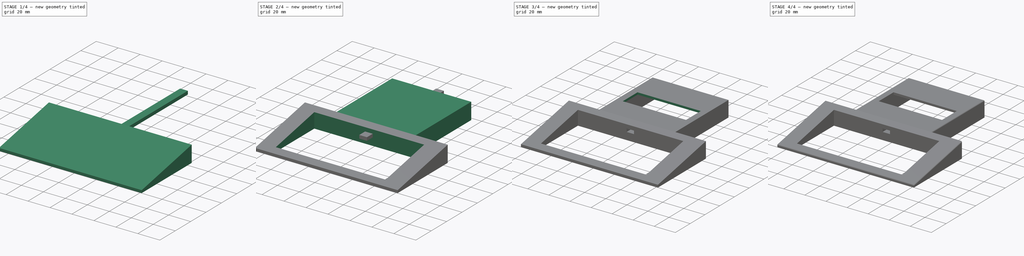
[diagram: build sequence overview — one tinted view per stage of 4, left to right]
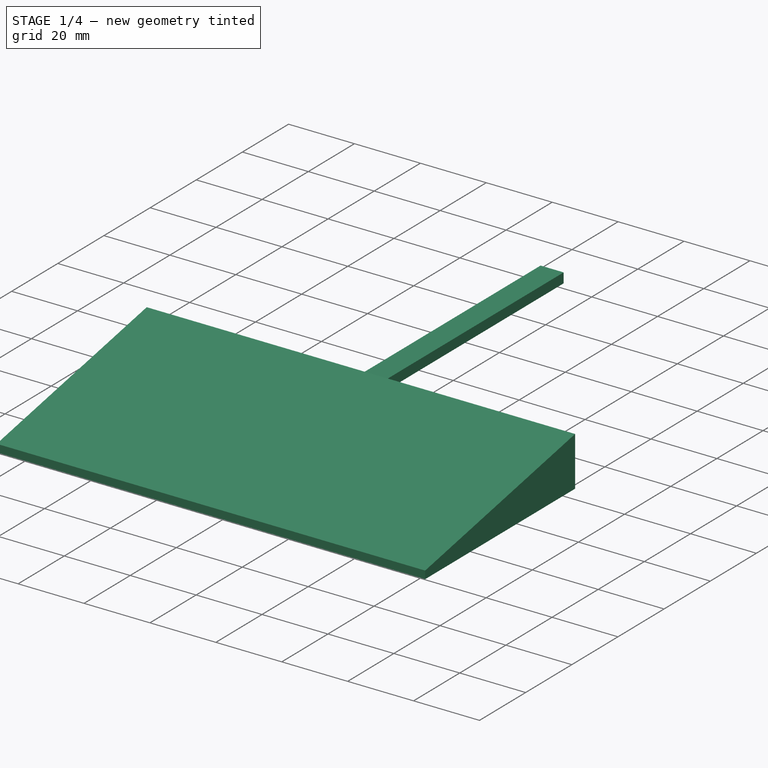
[diagram: stage 1 of 4 — iso view after this stage's code; geometry added in this stage tinted green]
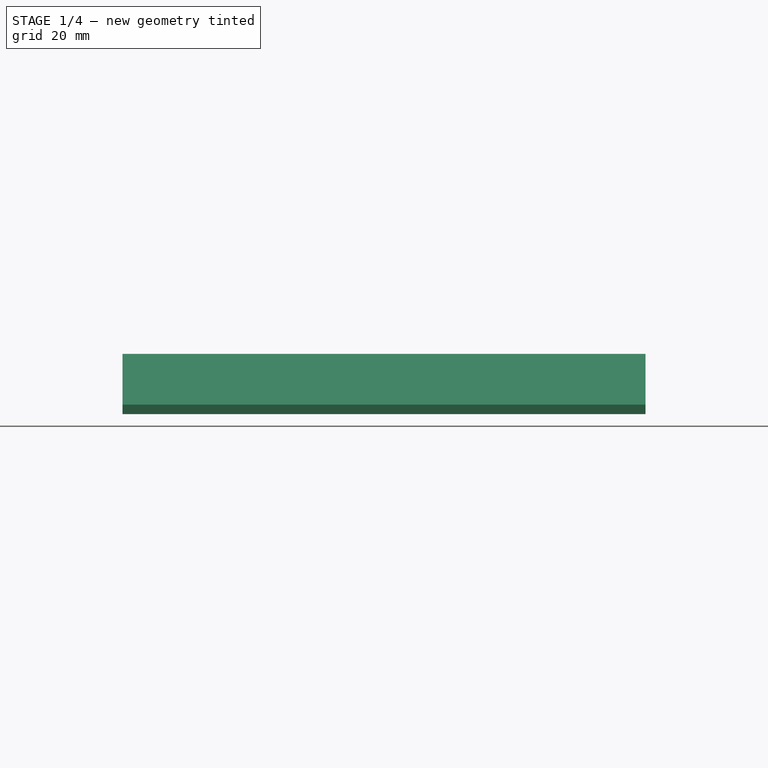
[diagram: stage 1 of 4 — front view after this stage's code; geometry added in this stage tinted green]
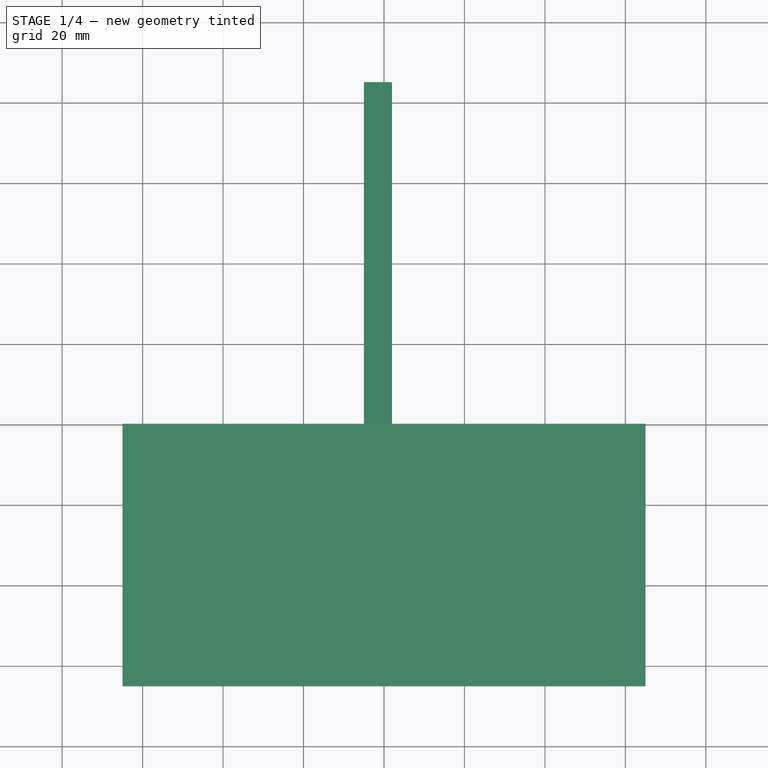
[diagram: stage 1 of 4 — top view after this stage's code; geometry added in this stage tinted green]
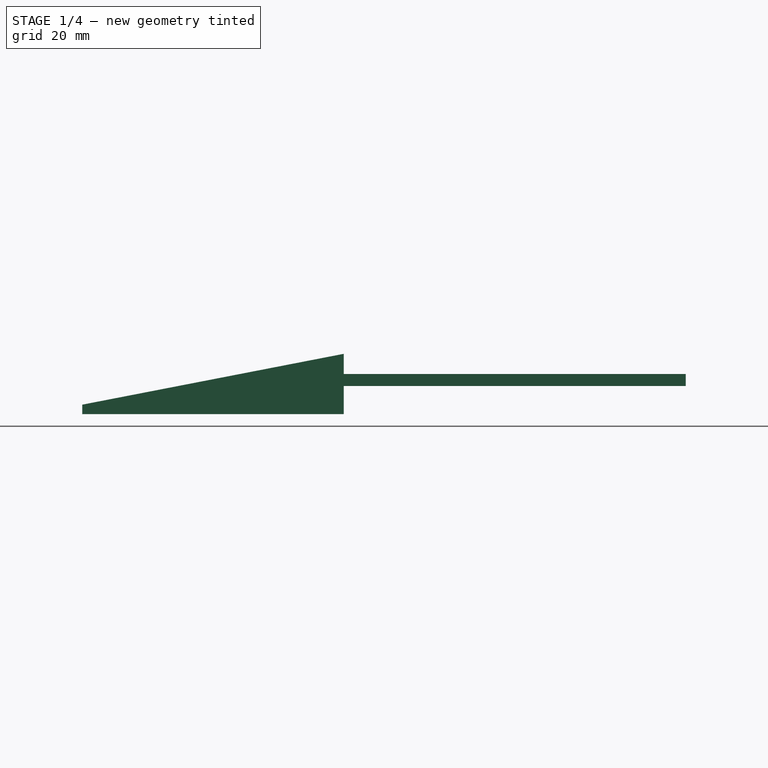
[diagram: stage 1 of 4 — right view after this stage's code; geometry added in this stage tinted green]
FCSTD DOCUMENT  (FreeCAD 0.17R13522 (Git))
Label: winkmaudi
License: All rights reserved
LicenseURL: http://en.wikipedia.org/wiki/All_rights_reserved
objects: Sketcher::SketchObject×6, PartDesign::Pocket×4, Part::Fillet×3, PartDesign::Pad×2, PartDesign::Draft×1, PartDesign::Body×1, Part::Box×1, Part::Cut×1
note: 25 computed .brp shape members not serialized (recipe doc carries the construction recipe); baked Part::Feature solids carry a one-line shape summary decoded from their .brp

FEATURE [Sketcher::SketchObject] Sketch
  MapMode = 5
  Support = -> [XY_Plane]
  sketch-geometry (4):
    g0: LineSegment StartX=-65 StartY=0 StartZ=0 EndX=65 EndY=0 EndZ=0
    g1: LineSegment StartX=65 StartY=0 StartZ=0 EndX=65 EndY=-65 EndZ=0
    g2: LineSegment StartX=65 StartY=-65 StartZ=0 EndX=-65 EndY=-65 EndZ=0
    g3: LineSegment StartX=-65 StartY=-65 StartZ=0 EndX=-65 EndY=0 EndZ=0
  constraints (12):
    c: Coincident(g0,g1)
    c: Coincident(g1,g2)
    c: Coincident(g2,g3)
    c: Coincident(g3,g0)
    c: Horizontal(g0)
    c: Horizontal(g2)
    c: Vertical(g1)
    c: Vertical(g3)
    c: PointOnObject(g0,g-1)
    c: DistanceX(g0,g0) = 130
    c: DistanceY(g3,g3) = 65
    c: Symmetric(g0,g0,g-2)
FEATURE [PartDesign::Pad] Pad
  Length = 15
  Length2 = 100
  Profile = -> Sketch
  Type = 0
FEATURE [PartDesign::Draft] Draft
  Angle = 11
  Base = -> Pad [Face6]
  BaseFeature = -> Pad
  NeutralPlane = -> Pad [Face1]
  Reversed = true
FEATURE [PartDesign::Body] Body
  Group = -> [Sketch,Pad,Draft,Sketch001,Pocket,Sketch002,Pad001,Sketch003,Pocket001,Sketch004,Pocket002,Sketch005,Pocket003]
  Origin = -> Origin
  Tip = -> Pocket003
FEATURE [Part::Box] Box  label="Würfel"
  AttacherType = Attacher::AttachEngine3D
  Height = 3
  Length = 7
  Placement = pos=(-5,-15,7) rot=(0,0,1;0rad)
  Width = 100
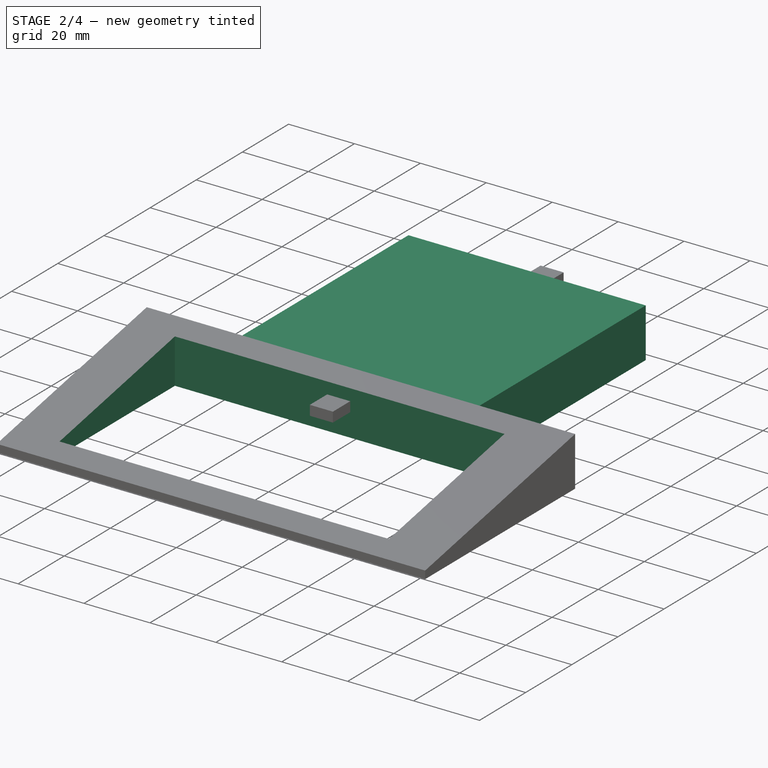
[diagram: stage 2 of 4 — iso view after this stage's code; geometry added in this stage tinted green]
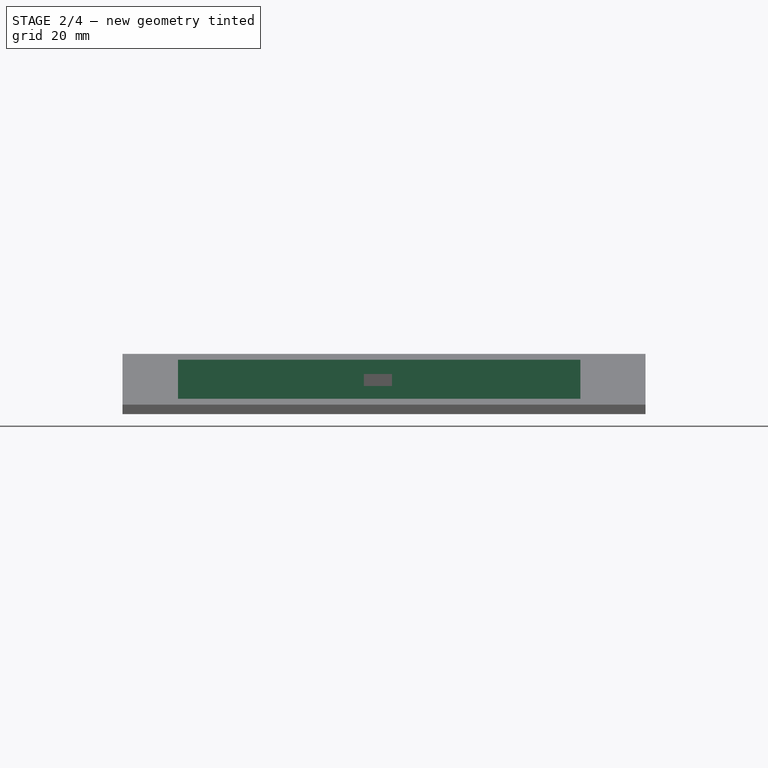
[diagram: stage 2 of 4 — front view after this stage's code; geometry added in this stage tinted green]
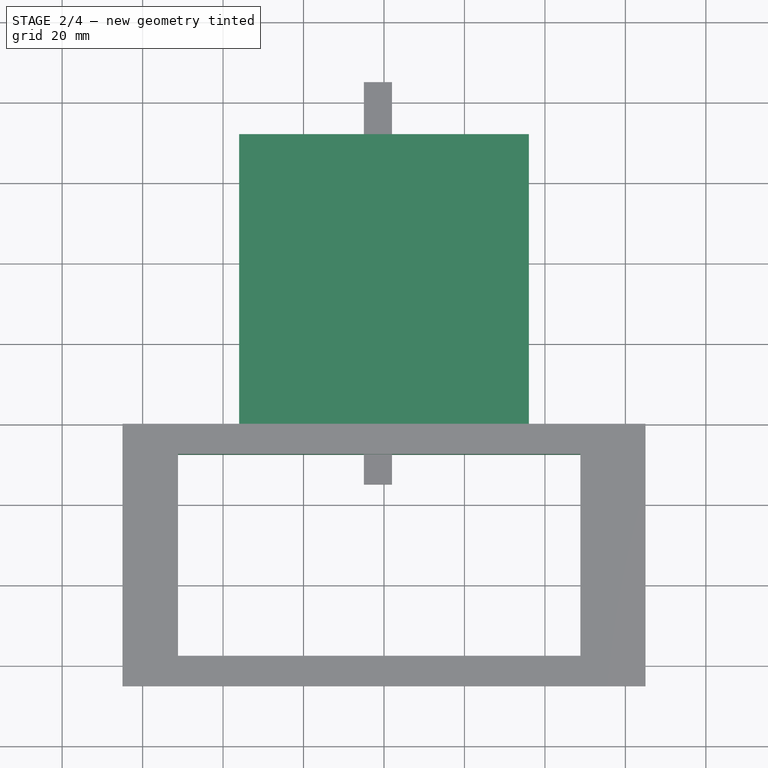
[diagram: stage 2 of 4 — top view after this stage's code; geometry added in this stage tinted green]
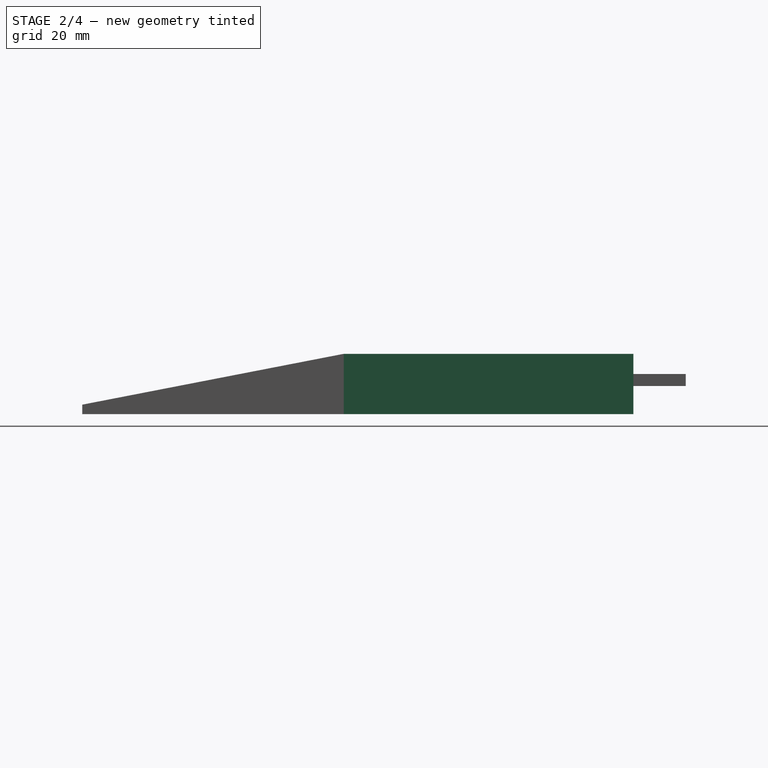
[diagram: stage 2 of 4 — right view after this stage's code; geometry added in this stage tinted green]
FEATURE [Sketcher::SketchObject] Sketch001
  MapMode = 5
  Support = -> [XY_Plane]
  sketch-geometry (4):
    g0: LineSegment StartX=-51.1952 StartY=-7.5 StartZ=0 EndX=48.8048 EndY=-7.5 EndZ=0
    g1: LineSegment StartX=48.8048 StartY=-7.5 StartZ=0 EndX=48.8048 EndY=-57.5 EndZ=0
    g2: LineSegment StartX=48.8048 StartY=-57.5 StartZ=0 EndX=-51.1952 EndY=-57.5 EndZ=0
    g3: LineSegment StartX=-51.1952 StartY=-57.5 StartZ=0 EndX=-51.1952 EndY=-7.5 EndZ=0
  constraints (11):
    c: Coincident(g0,g1)
    c: Coincident(g1,g2)
    c: Coincident(g2,g3)
    c: Coincident(g3,g0)
    c: Horizontal(g0)
    c: Horizontal(g2)
    c: Vertical(g1)
    c: Vertical(g3)
    c: DistanceX(g0,g0) = 100
    c: DistanceY(g3,g3) = 50
    c: DistanceY(g0,g-1) = 7.5
FEATURE [PartDesign::Pocket] Pocket
  BaseFeature = -> Draft
  Length = 20
  Length2 = 100
  Profile = -> Sketch001
  Reversed = true
  Type = 1
FEATURE [Sketcher::SketchObject] Sketch002
  MapMode = 5
  Support = -> [XY_Plane]
  sketch-geometry (4):
    g0: LineSegment StartX=-36 StartY=72 StartZ=0 EndX=36 EndY=72 EndZ=0
    g1: LineSegment StartX=36 StartY=72 StartZ=0 EndX=36 EndY=0 EndZ=0
    g2: LineSegment StartX=36 StartY=0 StartZ=0 EndX=-36 EndY=0 EndZ=0
    g3: LineSegment StartX=-36 StartY=0 StartZ=0 EndX=-36 EndY=72 EndZ=0
  constraints (12):
    c: Coincident(g0,g1)
    c: Coincident(g1,g2)
    c: Coincident(g2,g3)
    c: Coincident(g3,g0)
    c: Horizontal(g0)
    c: Horizontal(g2)
    c: Vertical(g1)
    c: Vertical(g3)
    c: PointOnObject(g1,g-1)
    c: DistanceY(g1,g1) = 72
    c: DistanceX(g0,g0) = 72
    c: Symmetric(g0,g0,g-2)
FEATURE [PartDesign::Pad] Pad001
  BaseFeature = -> Pocket
  Length = 15
  Length2 = 100
  Profile = -> Sketch002
  Type = 0
FEATURE [Sketcher::SketchObject] Sketch003
  MapMode = 5
  Support = -> [XY_Plane]
  sketch-geometry (4):
    g0: LineSegment StartX=-30 StartY=66 StartZ=0 EndX=30 EndY=66 EndZ=0
    g1: LineSegment StartX=30 StartY=66 StartZ=0 EndX=30 EndY=6 EndZ=0
    g2: LineSegment StartX=30 StartY=6 StartZ=0 EndX=-30 EndY=6 EndZ=0
    g3: LineSegment StartX=-30 StartY=6 StartZ=0 EndX=-30 EndY=66 EndZ=0
  constraints (12):
    c: Coincident(g0,g1)
    c: Coincident(g1,g2)
    c: Coincident(g2,g3)
    c: Coincident(g3,g0)
    c: Horizontal(g0)
    c: Horizontal(g2)
    c: Vertical(g1)
    c: Vertical(g3)
    c: DistanceY(g3,g3) = 60
    c: DistanceX(g0,g0) = 60
    c: Symmetric(g0,g0,g-2)
    c: DistanceY(g-1,g2) = 6
FEATURE [PartDesign::Pocket] Pocket001
  BaseFeature = -> Pad001
  Length = 26
  Length2 = 100
  Midplane = true
  Profile = -> Sketch003
  Type = 0
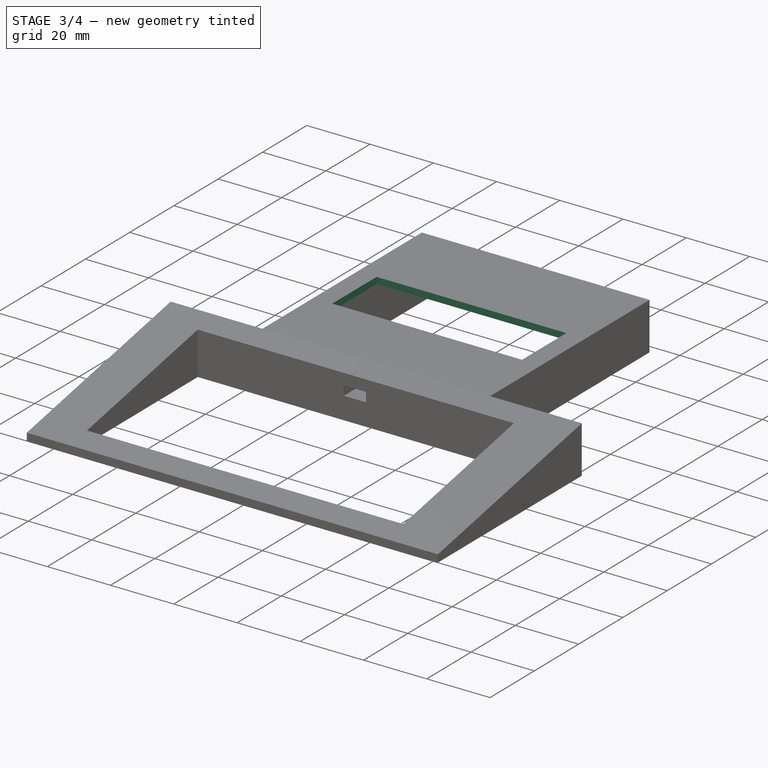
[diagram: stage 3 of 4 — iso view after this stage's code; geometry added in this stage tinted green]
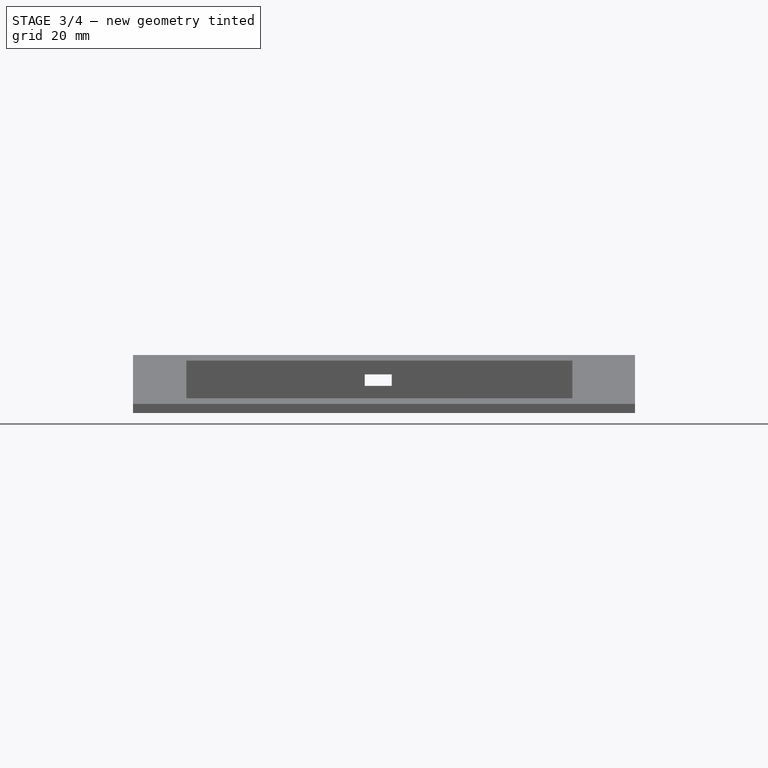
[diagram: stage 3 of 4 — front view after this stage's code; geometry added in this stage tinted green]
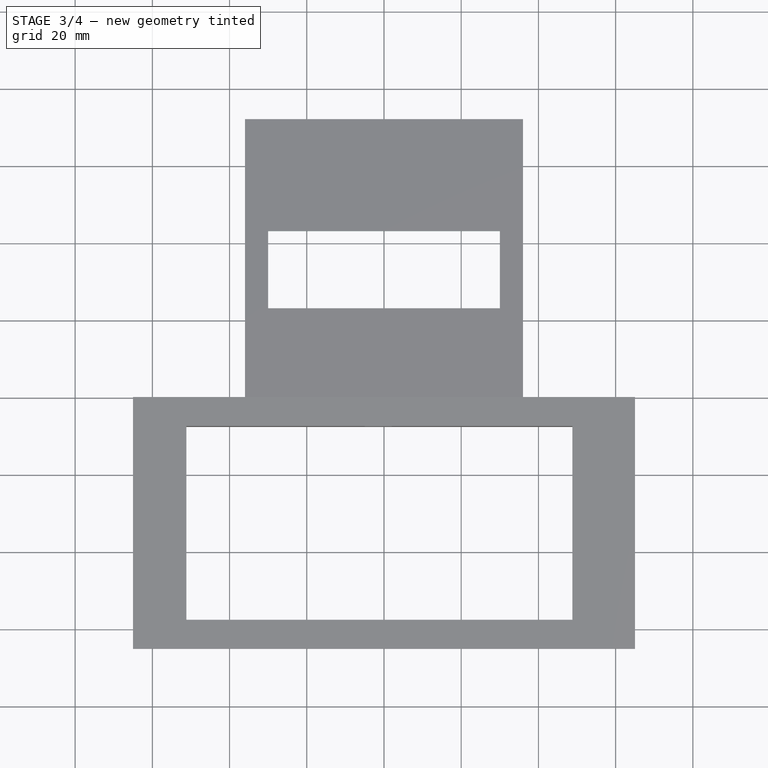
[diagram: stage 3 of 4 — top view after this stage's code; geometry added in this stage tinted green]
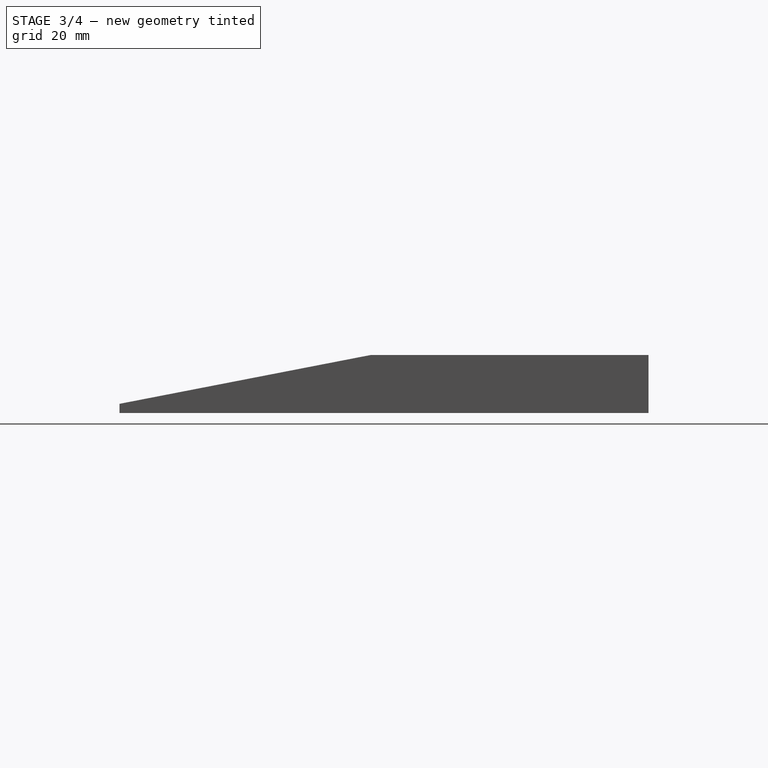
[diagram: stage 3 of 4 — right view after this stage's code; geometry added in this stage tinted green]
FEATURE [Sketcher::SketchObject] Sketch004
  MapMode = 5
  Placement = pos=(0,0,15) rot=(0,0,1;0rad)
  Support = -> [Pocket001]
  sketch-geometry (4):
    g0: LineSegment StartX=-30 StartY=43 StartZ=0 EndX=30 EndY=43 EndZ=0
    g1: LineSegment StartX=30 StartY=43 StartZ=0 EndX=30 EndY=23 EndZ=0
    g2: LineSegment StartX=30 StartY=23 StartZ=0 EndX=-30 EndY=23 EndZ=0
    g3: LineSegment StartX=-30 StartY=23 StartZ=0 EndX=-30 EndY=43 EndZ=0
  constraints (12):
    c: Coincident(g0,g1)
    c: Coincident(g1,g2)
    c: Coincident(g2,g3)
    c: Coincident(g3,g0)
    c: Horizontal(g0)
    c: Horizontal(g2)
    c: Vertical(g1)
    c: Vertical(g3)
    c: DistanceX(g0,g0) = 60
    c: DistanceY(g3,g3) = 20
    c: Symmetric(g0,g0,g-2)
    c: DistanceY(g-1,g1) = 23
FEATURE [PartDesign::Pocket] Pocket002
  BaseFeature = -> Pocket001
  Length = 60
  Length2 = 100
  Profile = -> Sketch004
  Type = 1
FEATURE [Sketcher::SketchObject] Sketch005
  MapMode = 5
  Support = -> [XY_Plane]
  sketch-geometry (4):
    g0: LineSegment StartX=-10 StartY=70 StartZ=0 EndX=10 EndY=70 EndZ=0
    g1: LineSegment StartX=10 StartY=70 StartZ=0 EndX=10 EndY=44 EndZ=0
    g2: LineSegment StartX=10 StartY=44 StartZ=0 EndX=-10 EndY=44 EndZ=0
    g3: LineSegment StartX=-10 StartY=44 StartZ=0 EndX=-10 EndY=70 EndZ=0
  constraints (12):
    c: Coincident(g0,g1)
    c: Coincident(g1,g2)
    c: Coincident(g2,g3)
    c: Coincident(g3,g0)
    c: Horizontal(g0)
    c: Horizontal(g2)
    c: Vertical(g1)
    c: Vertical(g3)
    c: DistanceX(g0,g0) = 20
    c: DistanceY(g3,g3) = 26
    c: Symmetric(g0,g0,g-2)
    c: DistanceY(g-1,g0) = 70
FEATURE [PartDesign::Pocket] Pocket003
  BaseFeature = -> Pocket002
  Length = 25
  Length2 = 100
  Midplane = true
  Profile = -> Sketch005
  Type = 0
FEATURE [Part::Cut] Cut
  Base = -> Pocket003
  Tool = -> Box
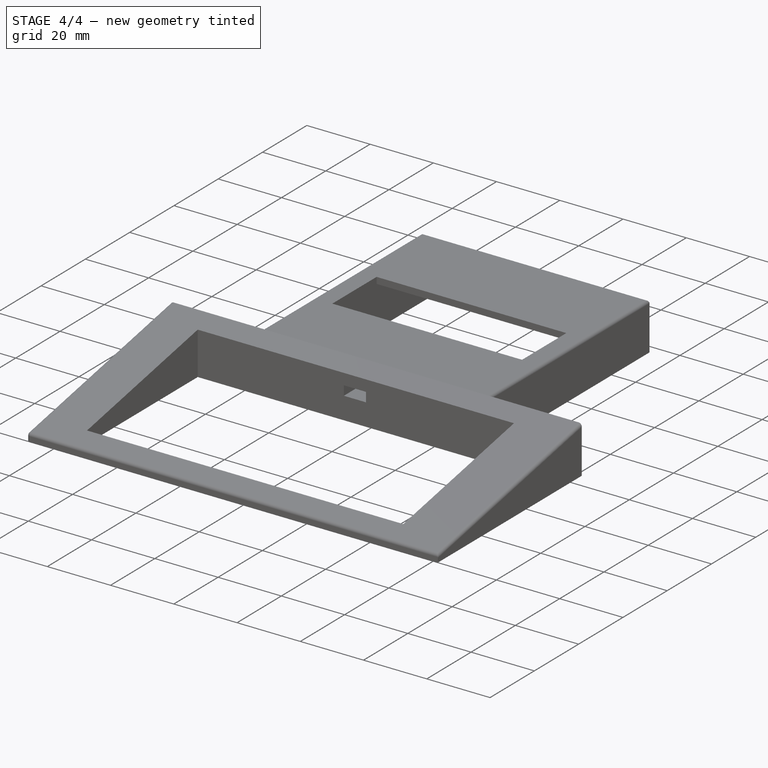
[diagram: stage 4 of 4 — iso view after this stage's code; geometry added in this stage tinted green]
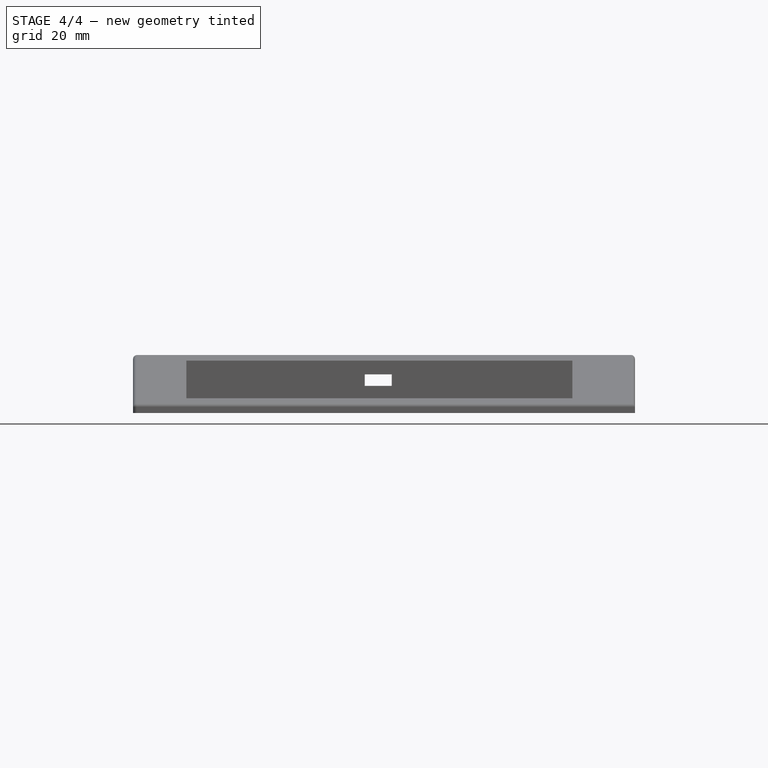
[diagram: stage 4 of 4 — front view after this stage's code; geometry added in this stage tinted green]
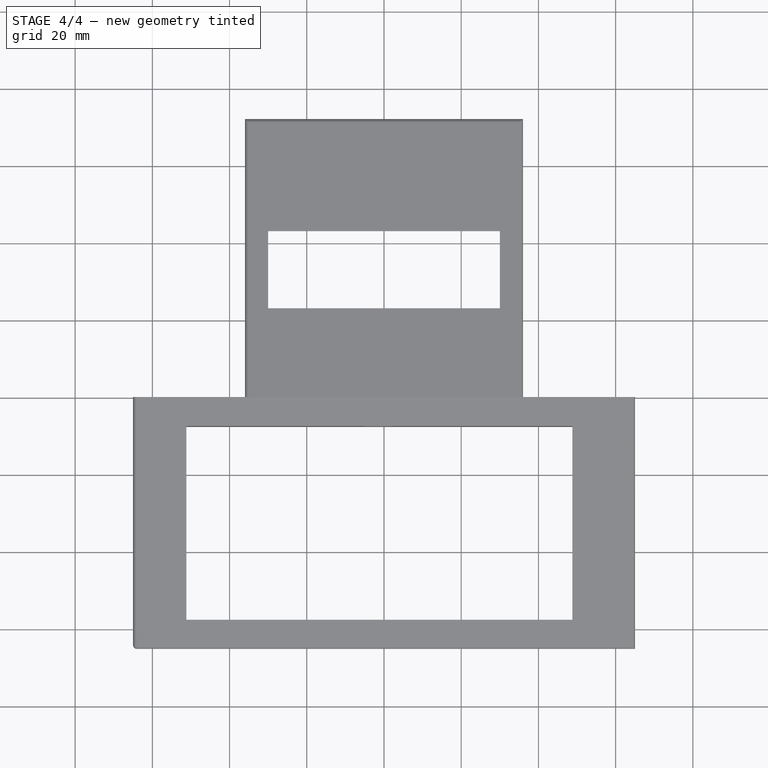
[diagram: stage 4 of 4 — top view after this stage's code; geometry added in this stage tinted green]
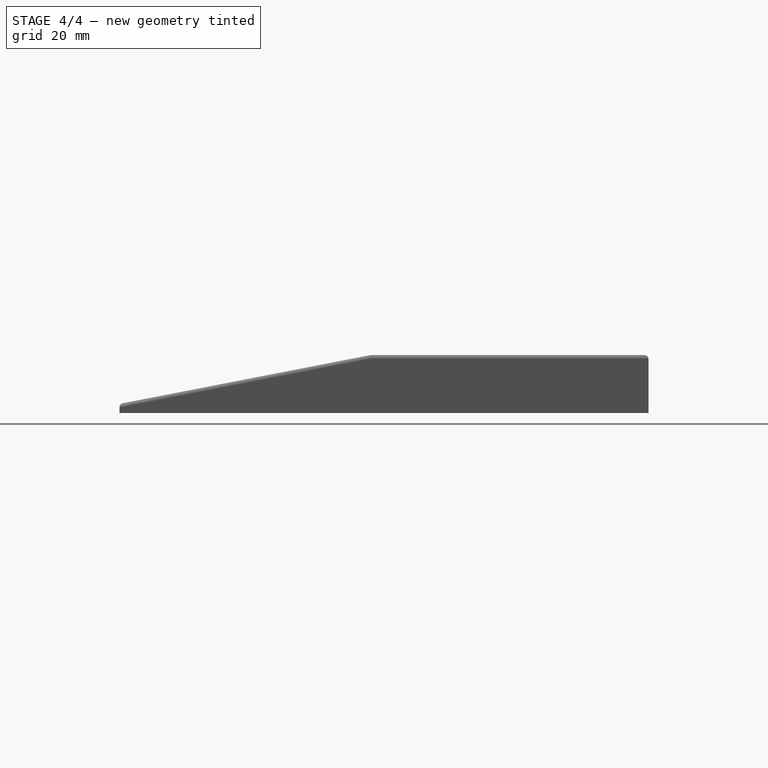
[diagram: stage 4 of 4 — right view after this stage's code; geometry added in this stage tinted green]
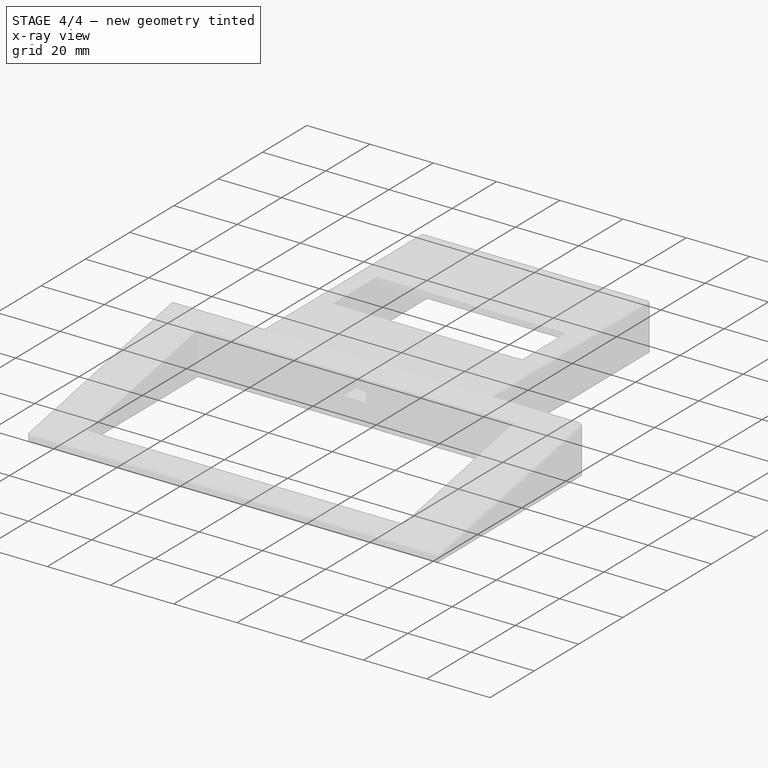
[diagram: stage 4 of 4 — x-ray composite at the iso view; earlier geometry ghosted, this stage's added geometry solid]
FEATURE [Part::Fillet] Fillet
  Base = -> Cut
  Edges = 4 edges r=1: [Edge1,Edge27,Edge52,Edge53]
FEATURE [Part::Fillet] Fillet001
  Base = -> Fillet
  Edges = 2 edges r=1: [Edge4,Edge22]
FEATURE [Part::Fillet] Fillet002
  Base = -> Fillet
  Edges = 3 edges r=1: [Edge1,Edge4,Edge22]
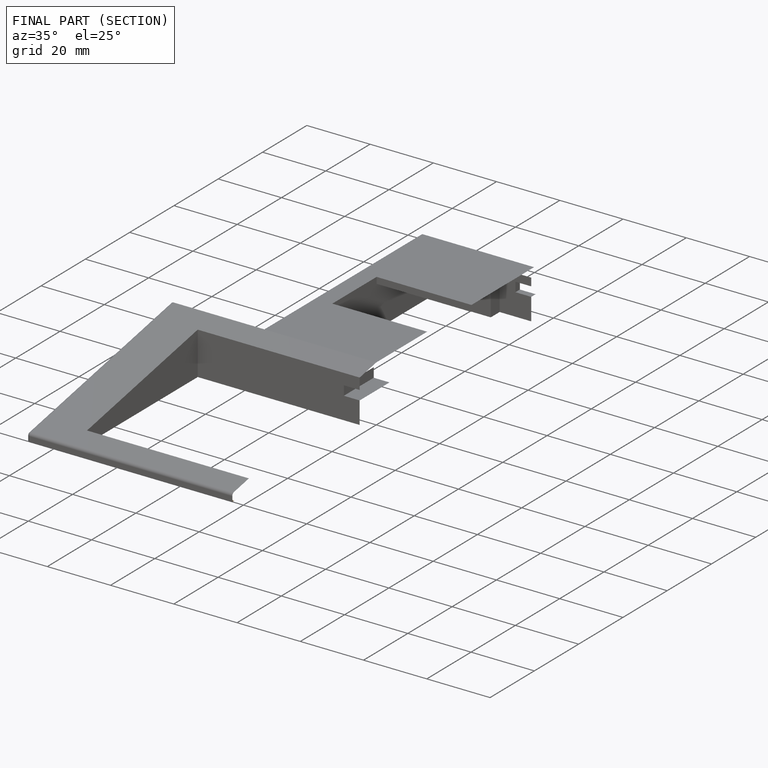
[diagram: finished part — half-section view (interior)]
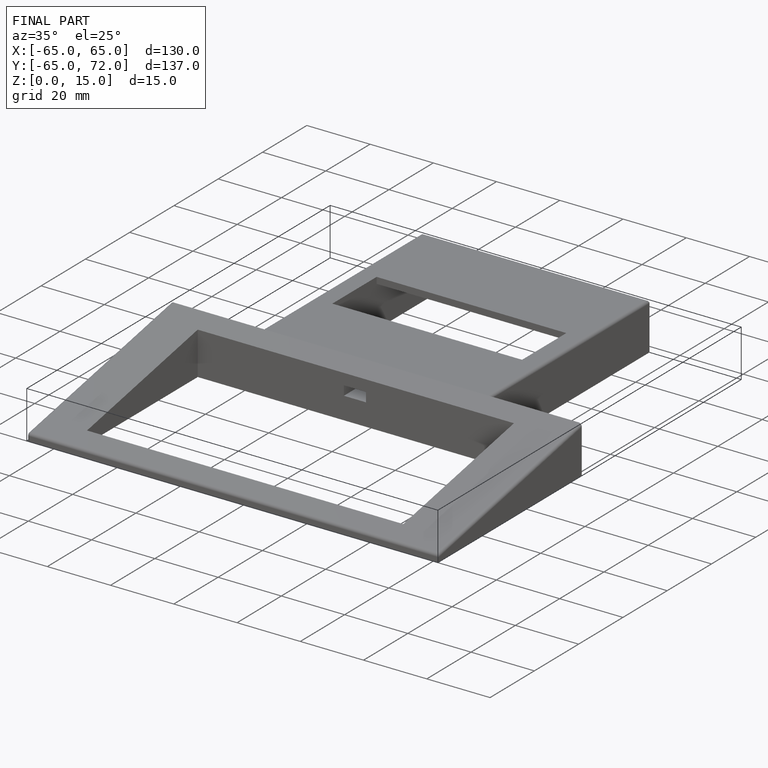
[diagram: finished part — iso view with bounding-box wireframe]
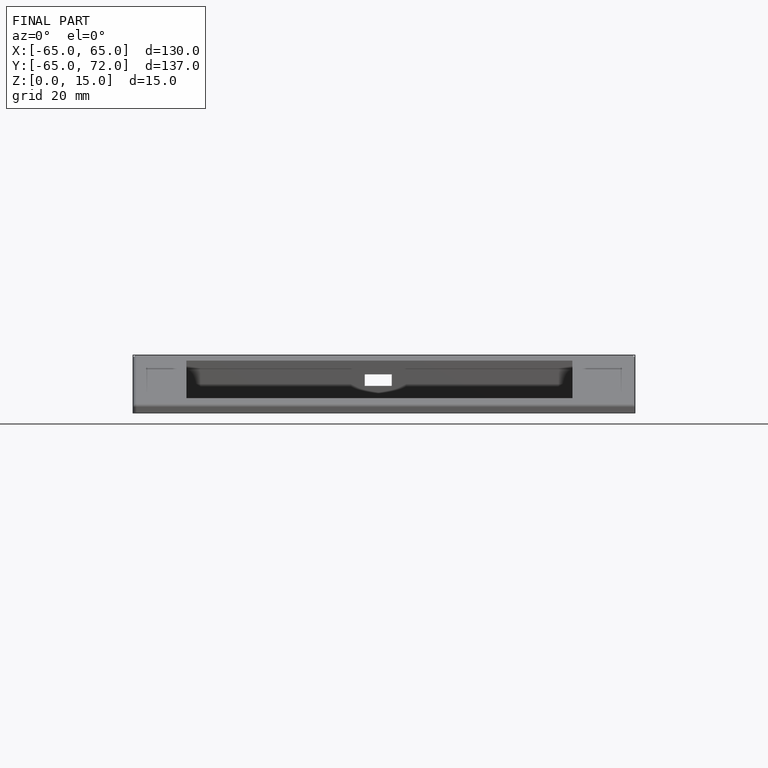
[diagram: finished part — front view with bounding-box wireframe]
